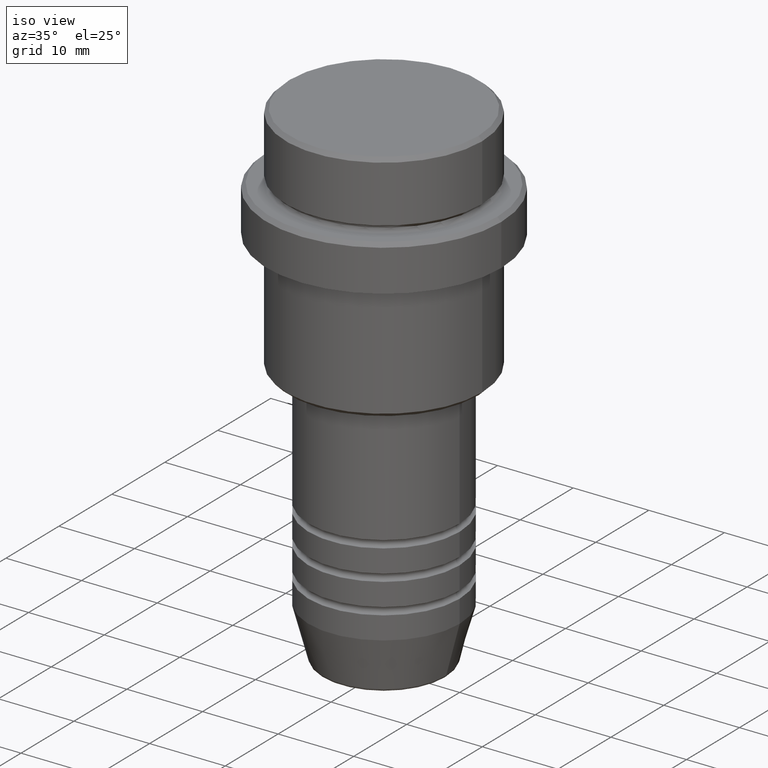
[diagram: clean part render]
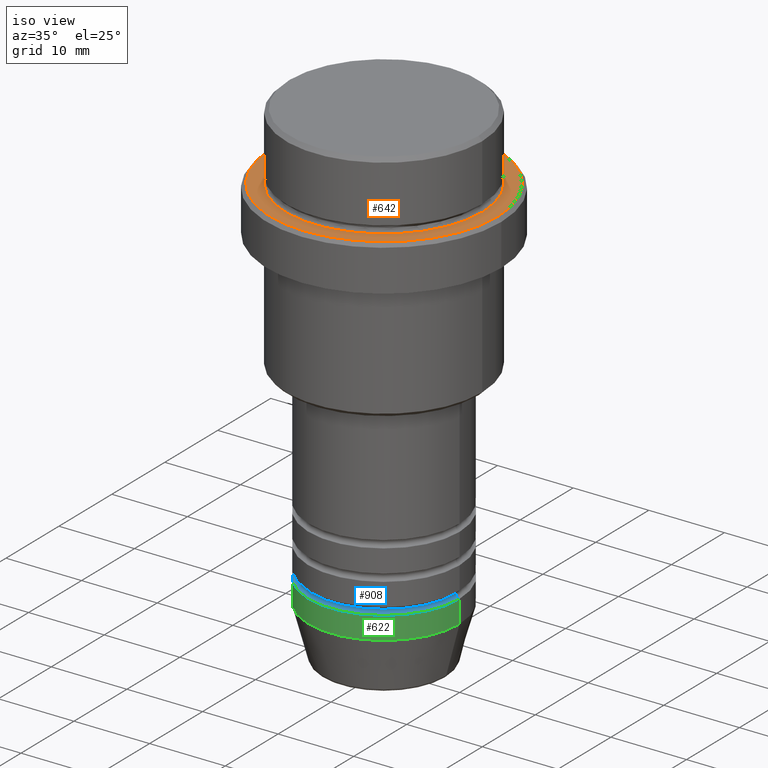
[diagram: same view with three faces highlighted in distinct colors, each labeled with its STEP entity id]
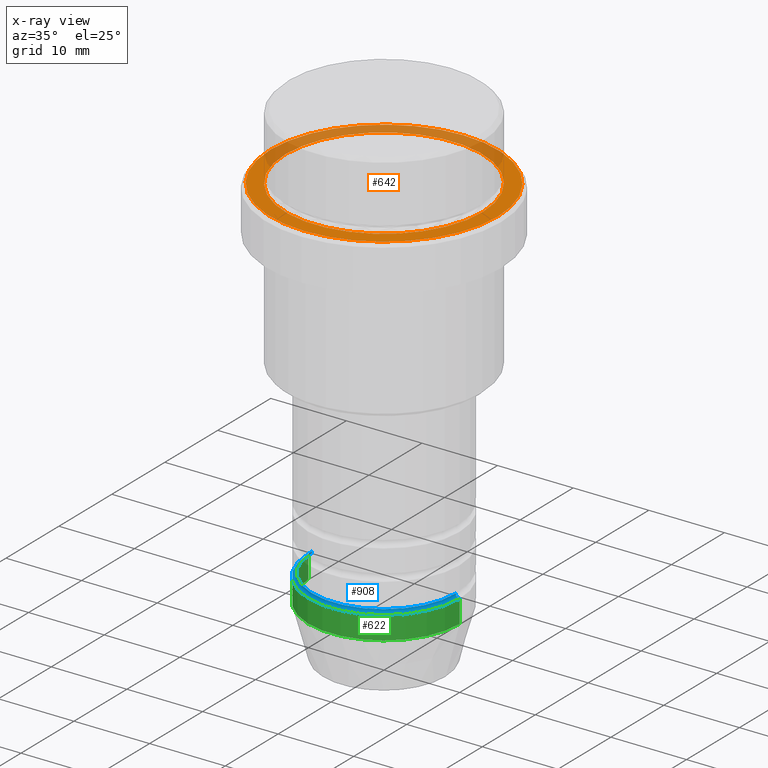
[diagram: x-ray of the same camera — body ghosted, the three highlighted faces saturated]
A machine part, iso view with three faces highlighted in distinct colors.
The next image is the same camera in x-ray (body ghosted, the three faces saturated) — at least one of them is partly hidden behind the body in this view.
Their STEP definitions:

[orange] entity #642 — the highlighted planar face has unit normal (0, -0, 1).
#7 = DIRECTION ( 'NONE',  ( 0.000000000000000000, -0.000000000000000000, 1.000000000000000000 ) ) ;
#89 = AXIS2_PLACEMENT_3D ( 'NONE', #499, #295, #492 ) ;
#115 = EDGE_CURVE ( 'NONE', #671, #306, #715, .T. ) ;
#121 = ORIENTED_EDGE ( 'NONE', *, *, #967, .T. ) ;
#132 = CIRCLE ( 'NONE', #487, 15.00000000000000711 ) ;
#182 = FACE_BOUND ( 'NONE', #711, .T. ) ;
#227 = CARTESIAN_POINT ( 'NONE',  ( 12.99999999999999467, 0.000000000000000000, -9.000000000000000000 ) ) ;
#237 = AXIS2_PLACEMENT_3D ( 'NONE', #1264, #518, #964 ) ;
#282 = CIRCLE ( 'NONE', #553, 15.00000000000000711 ) ;
#295 = DIRECTION ( 'NONE',  ( 0.000000000000000000, 0.000000000000000000, -1.000000000000000000 ) ) ;
#306 = VERTEX_POINT ( 'NONE', #632 ) ;
#472 = EDGE_LOOP ( 'NONE', ( #121, #1107 ) ) ;
#476 = EDGE_CURVE ( 'NONE', #571, #1351, #282, .T. ) ;
#484 = CARTESIAN_POINT ( 'NONE',  ( -15.00000000000000711, 0.000000000000000000, -9.000000000000000000 ) ) ;
#487 = AXIS2_PLACEMENT_3D ( 'NONE', #637, #862, #1396 ) ;
#492 = DIRECTION ( 'NONE',  ( 1.000000000000000000, 0.000000000000000000, 0.000000000000000000 ) ) ;
#499 = CARTESIAN_POINT ( 'NONE',  ( 0.000000000000000000, 0.000000000000000000, -9.000000000000000000 ) ) ;
#518 = DIRECTION ( 'NONE',  ( 0.000000000000000000, 0.000000000000000000, -1.000000000000000000 ) ) ;
#553 = AXIS2_PLACEMENT_3D ( 'NONE', #1042, #892, #1138 ) ;
#571 = VERTEX_POINT ( 'NONE', #1154 ) ;
#581 = ORIENTED_EDGE ( 'NONE', *, *, #115, .T. ) ;
#629 = EDGE_CURVE ( 'NONE', #306, #671, #1025, .T. ) ;
#632 = CARTESIAN_POINT ( 'NONE',  ( -12.99999999999999467, 1.592040838891558504E-15, -9.000000000000000000 ) ) ;
#637 = CARTESIAN_POINT ( 'NONE',  ( 0.000000000000000000, 0.000000000000000000, -9.000000000000000000 ) ) ;
#642 = ADVANCED_FACE ( 'NONE', ( #845, #182 ), #1075, .T. ) ;
#671 = VERTEX_POINT ( 'NONE', #227 ) ;
#711 = EDGE_LOOP ( 'NONE', ( #581, #1002 ) ) ;
#715 = CIRCLE ( 'NONE', #237, 12.99999999999999467 ) ;
#759 = CARTESIAN_POINT ( 'NONE',  ( 0.000000000000000000, 12.49999999999999289, -9.000000000000000000 ) ) ;
#845 = FACE_OUTER_BOUND ( 'NONE', #472, .T. ) ;
#862 = DIRECTION ( 'NONE',  ( -0.000000000000000000, -0.000000000000000000, 1.000000000000000000 ) ) ;
#892 = DIRECTION ( 'NONE',  ( -0.000000000000000000, -0.000000000000000000, 1.000000000000000000 ) ) ;
#964 = DIRECTION ( 'NONE',  ( 1.000000000000000000, 0.000000000000000000, 0.000000000000000000 ) ) ;
#967 = EDGE_CURVE ( 'NONE', #1351, #571, #132, .T. ) ;
#990 = DIRECTION ( 'NONE',  ( 1.000000000000000000, 0.000000000000000000, 0.000000000000000000 ) ) ;
#1002 = ORIENTED_EDGE ( 'NONE', *, *, #629, .T. ) ;
#1025 = CIRCLE ( 'NONE', #89, 12.99999999999999467 ) ;
#1042 = CARTESIAN_POINT ( 'NONE',  ( 0.000000000000000000, 0.000000000000000000, -9.000000000000000000 ) ) ;
#1069 = AXIS2_PLACEMENT_3D ( 'NONE', #759, #7, #990 ) ;
#1075 = PLANE ( 'NONE',  #1069 ) ;
#1107 = ORIENTED_EDGE ( 'NONE', *, *, #476, .T. ) ;
#1138 = DIRECTION ( 'NONE',  ( 1.000000000000000000, 0.000000000000000000, 0.000000000000000000 ) ) ;
#1154 = CARTESIAN_POINT ( 'NONE',  ( 15.00000000000000711, 1.867586368699714165E-15, -9.000000000000000000 ) ) ;
#1264 = CARTESIAN_POINT ( 'NONE',  ( 0.000000000000000000, 0.000000000000000000, -9.000000000000000000 ) ) ;
#1351 = VERTEX_POINT ( 'NONE', #484 ) ;
#1396 = DIRECTION ( 'NONE',  ( 1.000000000000000000, 0.000000000000000000, 0.000000000000000000 ) ) ;

[blue] entity #908 — the highlighted toroidal blend (fillet) surface has major radius 10 mm and minor (blend) radius 0.5 mm.
#43 = CIRCLE ( 'NONE', #215, 10.00000000000000000 ) ;
#46 = DIRECTION ( 'NONE',  ( -0.000000000000000000, -0.000000000000000000, 1.000000000000000000 ) ) ;
#128 = CARTESIAN_POINT ( 'NONE',  ( 9.999999999999991118, 0.000000000000000000, -55.49999999999994316 ) ) ;
#215 = AXIS2_PLACEMENT_3D ( 'NONE', #1283, #1060, #407 ) ;
#264 = ORIENTED_EDGE ( 'NONE', *, *, #329, .T. ) ;
#281 = CIRCLE ( 'NONE', #1088, 0.5000000000000004441 ) ;
#303 = CARTESIAN_POINT ( 'NONE',  ( -9.999999999999991118, 1.224646799147352270E-15, -55.49999999999994316 ) ) ;
#310 = EDGE_CURVE ( 'NONE', #1118, #1376, #594, .T. ) ;
#329 = EDGE_CURVE ( 'NONE', #604, #839, #281, .T. ) ;
#342 = CARTESIAN_POINT ( 'NONE',  ( -10.00000000000000000, 1.224646799147353256E-15, -56.00000000000000000 ) ) ;
#407 = DIRECTION ( 'NONE',  ( 1.000000000000000000, 0.000000000000000000, 0.000000000000000000 ) ) ;
#452 = CARTESIAN_POINT ( 'NONE',  ( 0.000000000000000000, 0.000000000000000000, -55.49999999999994316 ) ) ;
#504 = ORIENTED_EDGE ( 'NONE', *, *, #634, .F. ) ;
#506 = CARTESIAN_POINT ( 'NONE',  ( -9.499999999999991118, 1.194030629168668878E-15, -55.49999999999994316 ) ) ;
#577 = CIRCLE ( 'NONE', #694, 9.499999999999991118 ) ;
#594 = CIRCLE ( 'NONE', #1267, 0.5000000000000004441 ) ;
#604 = VERTEX_POINT ( 'NONE', #506 ) ;
#614 = EDGE_CURVE ( 'NONE', #839, #1376, #43, .T. ) ;
#634 = EDGE_CURVE ( 'NONE', #604, #1118, #577, .T. ) ;
#694 = AXIS2_PLACEMENT_3D ( 'NONE', #735, #1375, #834 ) ;
#735 = CARTESIAN_POINT ( 'NONE',  ( 0.000000000000000000, 0.000000000000000000, -55.49999999999994316 ) ) ;
#756 = DIRECTION ( 'NONE',  ( -1.000000000000000000, 1.224646799147353454E-16, 0.000000000000000000 ) ) ;
#771 = CARTESIAN_POINT ( 'NONE',  ( 9.499999999999991118, 0.000000000000000000, -55.49999999999994316 ) ) ;
#779 = DIRECTION ( 'NONE',  ( 1.000000000000000000, 0.000000000000000000, 0.000000000000000000 ) ) ;
#834 = DIRECTION ( 'NONE',  ( 1.000000000000000000, 0.000000000000000000, 0.000000000000000000 ) ) ;
#839 = VERTEX_POINT ( 'NONE', #342 ) ;
#908 = ADVANCED_FACE ( 'NONE', ( #1121 ), #974, .F. ) ;
#974 = TOROIDAL_SURFACE ( 'NONE', #1311, 9.999999999999991118, 0.5000000000000000000 ) ;
#980 = DIRECTION ( 'NONE',  ( 1.224646799147353207E-16, 1.000000000000000000, 0.000000000000000000 ) ) ;
#1060 = DIRECTION ( 'NONE',  ( -0.000000000000000000, -0.000000000000000000, 1.000000000000000000 ) ) ;
#1088 = AXIS2_PLACEMENT_3D ( 'NONE', #303, #980, #756 ) ;
#1118 = VERTEX_POINT ( 'NONE', #771 ) ;
#1121 = FACE_OUTER_BOUND ( 'NONE', #1140, .T. ) ;
#1130 = CARTESIAN_POINT ( 'NONE',  ( 10.00000000000000000, 0.000000000000000000, -56.00000000000000000 ) ) ;
#1140 = EDGE_LOOP ( 'NONE', ( #504, #264, #1258, #1331 ) ) ;
#1258 = ORIENTED_EDGE ( 'NONE', *, *, #614, .T. ) ;
#1267 = AXIS2_PLACEMENT_3D ( 'NONE', #128, #1297, #1305 ) ;
#1283 = CARTESIAN_POINT ( 'NONE',  ( 0.000000000000000000, 0.000000000000000000, -56.00000000000000000 ) ) ;
#1297 = DIRECTION ( 'NONE',  ( 0.000000000000000000, -1.000000000000000000, 0.000000000000000000 ) ) ;
#1305 = DIRECTION ( 'NONE',  ( 0.000000000000000000, 0.000000000000000000, -1.000000000000000000 ) ) ;
#1311 = AXIS2_PLACEMENT_3D ( 'NONE', #452, #46, #779 ) ;
#1331 = ORIENTED_EDGE ( 'NONE', *, *, #310, .F. ) ;
#1375 = DIRECTION ( 'NONE',  ( -0.000000000000000000, -0.000000000000000000, 1.000000000000000000 ) ) ;
#1376 = VERTEX_POINT ( 'NONE', #1130 ) ;

[green] entity #622 — the highlighted cylindrical surface (partial cylindrical patch) has radius 10 mm, axis along (-0, -0, 1).
#15 = VECTOR ( 'NONE', #1250, 1000.000000000000000 ) ;
#43 = CIRCLE ( 'NONE', #215, 10.00000000000000000 ) ;
#63 = LINE ( 'NONE', #927, #1201 ) ;
#68 = CYLINDRICAL_SURFACE ( 'NONE', #1197, 10.00000000000000000 ) ;
#95 = EDGE_LOOP ( 'NONE', ( #1374, #334, #830, #1150 ) ) ;
#215 = AXIS2_PLACEMENT_3D ( 'NONE', #1283, #1060, #407 ) ;
#250 = VERTEX_POINT ( 'NONE', #421 ) ;
#273 = DIRECTION ( 'NONE',  ( -0.000000000000000000, -0.000000000000000000, 1.000000000000000000 ) ) ;
#285 = CARTESIAN_POINT ( 'NONE',  ( 0.000000000000000000, 0.000000000000000000, 0.000000000000000000 ) ) ;
#334 = ORIENTED_EDGE ( 'NONE', *, *, #488, .T. ) ;
#342 = CARTESIAN_POINT ( 'NONE',  ( -10.00000000000000000, 1.224646799147353256E-15, -56.00000000000000000 ) ) ;
#368 = CARTESIAN_POINT ( 'NONE',  ( 10.00000000000000000, 0.000000000000000000, 0.000000000000000000 ) ) ;
#391 = FACE_OUTER_BOUND ( 'NONE', #95, .T. ) ;
#407 = DIRECTION ( 'NONE',  ( 1.000000000000000000, 0.000000000000000000, 0.000000000000000000 ) ) ;
#421 = CARTESIAN_POINT ( 'NONE',  ( -10.00000000000000000, 1.224646799147353256E-15, -59.00000000000000711 ) ) ;
#427 = EDGE_CURVE ( 'NONE', #1012, #1376, #912, .T. ) ;
#438 = CIRCLE ( 'NONE', #667, 10.00000000000000000 ) ;
#488 = EDGE_CURVE ( 'NONE', #250, #1012, #438, .T. ) ;
#592 = DIRECTION ( 'NONE',  ( -0.000000000000000000, -0.000000000000000000, 1.000000000000000000 ) ) ;
#614 = EDGE_CURVE ( 'NONE', #839, #1376, #43, .T. ) ;
#622 = ADVANCED_FACE ( 'NONE', ( #391 ), #68, .T. ) ;
#667 = AXIS2_PLACEMENT_3D ( 'NONE', #1128, #918, #1369 ) ;
#724 = DIRECTION ( 'NONE',  ( 1.000000000000000000, 0.000000000000000000, 0.000000000000000000 ) ) ;
#830 = ORIENTED_EDGE ( 'NONE', *, *, #427, .T. ) ;
#839 = VERTEX_POINT ( 'NONE', #342 ) ;
#912 = LINE ( 'NONE', #368, #15 ) ;
#918 = DIRECTION ( 'NONE',  ( -0.000000000000000000, -0.000000000000000000, 1.000000000000000000 ) ) ;
#927 = CARTESIAN_POINT ( 'NONE',  ( -10.00000000000000000, 1.224646799147353256E-15, 0.000000000000000000 ) ) ;
#957 = CARTESIAN_POINT ( 'NONE',  ( 10.00000000000000000, 0.000000000000000000, -59.00000000000000711 ) ) ;
#1012 = VERTEX_POINT ( 'NONE', #957 ) ;
#1060 = DIRECTION ( 'NONE',  ( -0.000000000000000000, -0.000000000000000000, 1.000000000000000000 ) ) ;
#1128 = CARTESIAN_POINT ( 'NONE',  ( 0.000000000000000000, 0.000000000000000000, -59.00000000000000711 ) ) ;
#1130 = CARTESIAN_POINT ( 'NONE',  ( 10.00000000000000000, 0.000000000000000000, -56.00000000000000000 ) ) ;
#1150 = ORIENTED_EDGE ( 'NONE', *, *, #614, .F. ) ;
#1197 = AXIS2_PLACEMENT_3D ( 'NONE', #285, #273, #724 ) ;
#1201 = VECTOR ( 'NONE', #592, 1000.000000000000000 ) ;
#1250 = DIRECTION ( 'NONE',  ( -0.000000000000000000, -0.000000000000000000, 1.000000000000000000 ) ) ;
#1283 = CARTESIAN_POINT ( 'NONE',  ( 0.000000000000000000, 0.000000000000000000, -56.00000000000000000 ) ) ;
#1350 = EDGE_CURVE ( 'NONE', #250, #839, #63, .T. ) ;
#1369 = DIRECTION ( 'NONE',  ( 1.000000000000000000, 0.000000000000000000, 0.000000000000000000 ) ) ;
#1374 = ORIENTED_EDGE ( 'NONE', *, *, #1350, .F. ) ;
#1376 = VERTEX_POINT ( 'NONE', #1130 ) ;